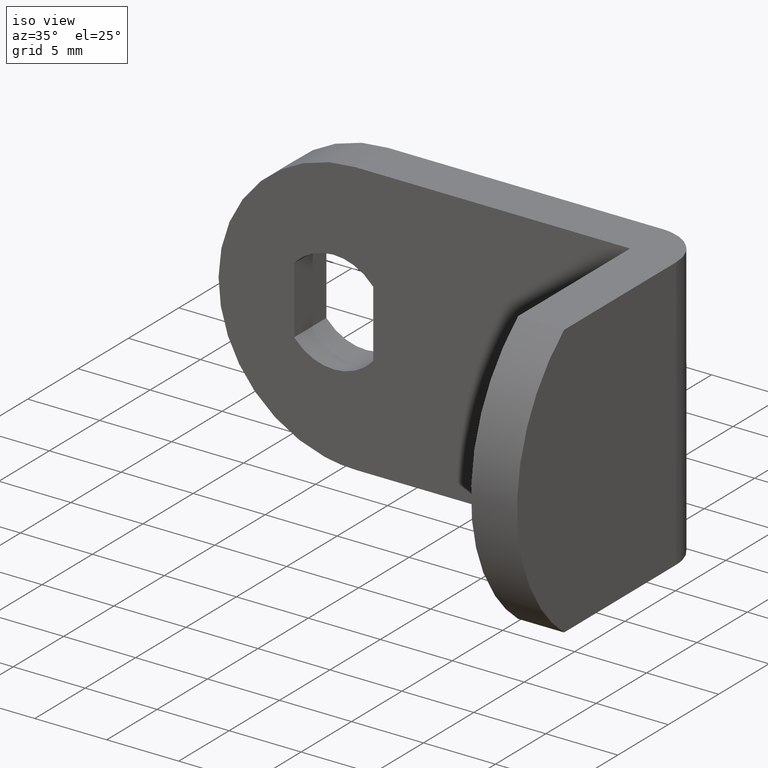
[diagram: clean part render]
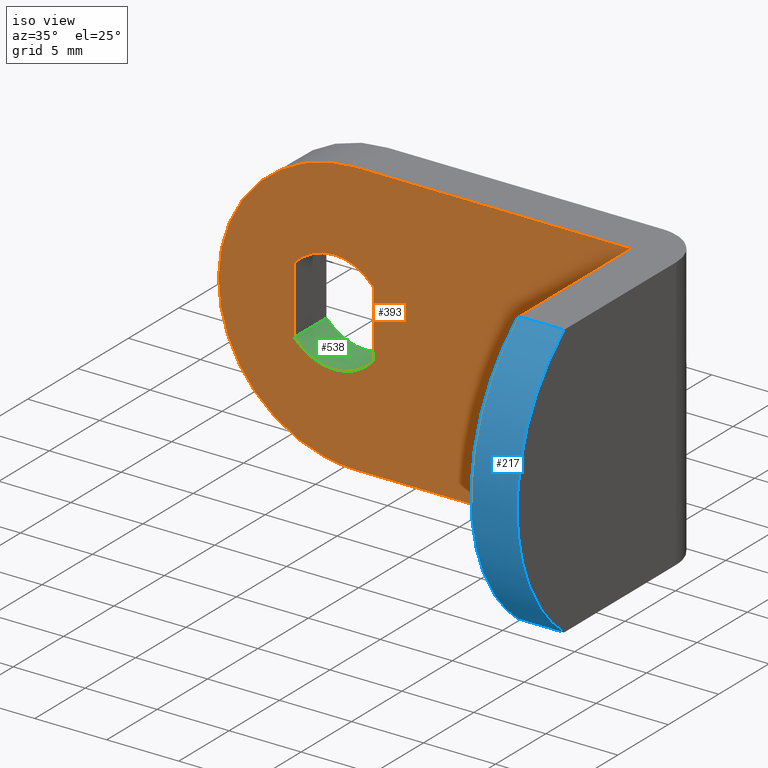
[diagram: same view with three faces highlighted in distinct colors, each labeled with its STEP entity id]
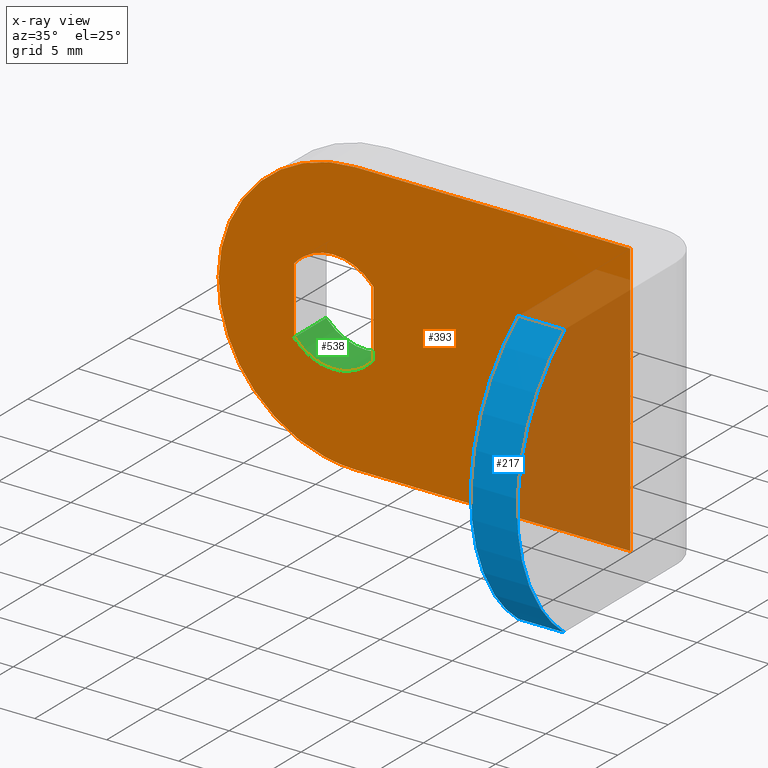
[diagram: x-ray of the same camera — body ghosted, the three highlighted faces saturated]
A machine part, iso view with three faces highlighted in distinct colors.
The next image is the same camera in x-ray (body ghosted, the three faces saturated) — at least one of them is partly hidden behind the body in this view.
Their STEP definitions:

[orange] entity #393 — the highlighted face is a freeform B-spline surface patch.
#110=CARTESIAN_POINT('',(20.600000000000001,-3.199999999999760,-9.500000000000000));
#111=VERTEX_POINT('',#110);
#112=CARTESIAN_POINT('',(20.600000000000001,-3.199999999999760,9.500000000000000));
#113=VERTEX_POINT('',#112);
#114=CARTESIAN_POINT('',(20.600000000000001,-3.199999999999760,-9.500000000000000));
#115=CARTESIAN_POINT('',(20.600000000000001,-3.199999999999760,9.500000000000000));
#116=QUASI_UNIFORM_CURVE('',1,(#114,#115),.UNSPECIFIED.,.F.,.U.);
#117=EDGE_CURVE('',#111,#113,#116,.T.);
#306=CARTESIAN_POINT('',(-9.428569944567636,-3.199999999999800,10.449049963174311));
#307=CARTESIAN_POINT('',(22.028570711679428,-3.199999999999800,10.449049963174311));
#308=CARTESIAN_POINT('',(-9.428569944567636,-3.199999999999800,-10.449050472794021));
#309=CARTESIAN_POINT('',(22.028570711679428,-3.199999999999800,-10.449050472794021));
#310=B_SPLINE_SURFACE_WITH_KNOTS('',1,1,((#306,#308),(#307,#309)),.UNSPECIFIED.,.F.,.F.,.U.,(2,2),(2,2),(0.0,31.457140656247059),(0.0,20.898100435968342),.UNSPECIFIED.);
#311=CARTESIAN_POINT('',(1.500000000000000,-3.199999999999760,9.500000000000000));
#312=VERTEX_POINT('',#311);
#313=CARTESIAN_POINT('',(20.600000000000001,-3.199999999999760,9.500000000000000));
#314=CARTESIAN_POINT('',(1.500000000000000,-3.199999999999760,9.500000000000000));
#315=QUASI_UNIFORM_CURVE('',1,(#313,#314),.UNSPECIFIED.,.F.,.U.);
#316=EDGE_CURVE('',#113,#312,#315,.T.);
#317=ORIENTED_EDGE('',*,*,#316,.T.);
#318=CARTESIAN_POINT('',(1.500000000000000,-3.199999999999760,-9.500000000000000));
#319=VERTEX_POINT('',#318);
#320=CARTESIAN_POINT('',(1.500000000000000,-3.199999999999760,9.500000000000000));
#321=CARTESIAN_POINT('',(-8.0,-3.199999999999759,9.500000000000000));
#322=CARTESIAN_POINT('',(-8.0,-3.199999999999760,0.0));
#323=CARTESIAN_POINT('',(-8.0,-3.199999999999759,-9.500000000000000));
#324=CARTESIAN_POINT('',(1.500000000000000,-3.199999999999760,-9.500000000000000));
#332=(BOUNDED_CURVE()B_SPLINE_CURVE(2,(#320,#321,#322,#323,#324),.UNSPECIFIED.,.F.,.U.)B_SPLINE_CURVE_WITH_KNOTS((3,2,3),(0.0,0.500000000000000,1.0),.UNSPECIFIED.)CURVE()GEOMETRIC_REPRESENTATION_ITEM()RATIONAL_B_SPLINE_CURVE((1.0,0.707106781186548,1.0,0.707106781186548,1.0))REPRESENTATION_ITEM(''));
#333=EDGE_CURVE('',#312,#319,#332,.T.);
#334=ORIENTED_EDGE('',*,*,#333,.T.);
#335=CARTESIAN_POINT('',(1.500000000000000,-3.199999999999760,-9.500000000000000));
#336=CARTESIAN_POINT('',(20.600000000000001,-3.199999999999760,-9.500000000000000));
#337=QUASI_UNIFORM_CURVE('',1,(#335,#336),.UNSPECIFIED.,.F.,.U.);
#338=EDGE_CURVE('',#319,#111,#337,.T.);
#339=ORIENTED_EDGE('',*,*,#338,.T.);
#340=ORIENTED_EDGE('',*,*,#117,.T.);
#341=EDGE_LOOP('',(#317,#334,#339,#340));
#342=FACE_OUTER_BOUND('',#341,.T.);
#343=CARTESIAN_POINT('',(-2.750000000000000,-3.199999999999760,-2.323252031097790));
#344=VERTEX_POINT('',#343);
#345=CARTESIAN_POINT('',(2.750000000000000,-3.199999999999760,-2.323252031097790));
#346=VERTEX_POINT('',#345);
#347=CARTESIAN_POINT('',(-2.749999999999999,-3.199999999999760,-2.323252031097790));
#348=CARTESIAN_POINT('',(-1.671379159290166,-3.199999999999760,-3.600000000000001));
#349=CARTESIAN_POINT('',(0.0,-3.199999999999760,-3.600000000000000));
#350=CARTESIAN_POINT('',(1.671379159290166,-3.199999999999760,-3.600000000000001));
#351=CARTESIAN_POINT('',(2.749999999999998,-3.199999999999760,-2.323252031097791));
#359=(BOUNDED_CURVE()B_SPLINE_CURVE(2,(#347,#348,#349,#350,#351),.UNSPECIFIED.,.F.,.U.)B_SPLINE_CURVE_WITH_KNOTS((3,2,3),(0.0,0.500000000000000,1.0),.UNSPECIFIED.)CURVE()GEOMETRIC_REPRESENTATION_ITEM()RATIONAL_B_SPLINE_CURVE((1.0,0.907013722723105,1.0,0.907013722723105,1.0))REPRESENTATION_ITEM(''));
#360=EDGE_CURVE('',#344,#346,#359,.T.);
#361=ORIENTED_EDGE('',*,*,#360,.F.);
#362=CARTESIAN_POINT('',(-2.750000000000000,-3.199999999999760,2.323252031097790));
#363=VERTEX_POINT('',#362);
#364=CARTESIAN_POINT('',(-2.750000000000000,-3.199999999999760,-2.323252031097790));
#365=CARTESIAN_POINT('',(-2.750000000000000,-3.199999999999760,2.323252031097790));
#366=QUASI_UNIFORM_CURVE('',1,(#364,#365),.UNSPECIFIED.,.F.,.U.);
#367=EDGE_CURVE('',#344,#363,#366,.T.);
#368=ORIENTED_EDGE('',*,*,#367,.T.);
#369=CARTESIAN_POINT('',(2.750000000000000,-3.199999999999760,2.323252031097790));
#370=VERTEX_POINT('',#369);
#371=CARTESIAN_POINT('',(2.749999999999999,-3.199999999999760,2.323252031097790));
#372=CARTESIAN_POINT('',(1.671379159290166,-3.199999999999760,3.600000000000001));
#373=CARTESIAN_POINT('',(0.0,-3.199999999999760,3.600000000000000));
#374=CARTESIAN_POINT('',(-1.671379159290165,-3.199999999999760,3.600000000000001));
#375=CARTESIAN_POINT('',(-2.749999999999998,-3.199999999999760,2.323252031097791));
#383=(BOUNDED_CURVE()B_SPLINE_CURVE(2,(#371,#372,#373,#374,#375),.UNSPECIFIED.,.F.,.U.)B_SPLINE_CURVE_WITH_KNOTS((3,2,3),(0.0,0.500000000000000,1.0),.UNSPECIFIED.)CURVE()GEOMETRIC_REPRESENTATION_ITEM()RATIONAL_B_SPLINE_CURVE((1.0,0.907013722723105,1.0,0.907013722723105,1.0))REPRESENTATION_ITEM(''));
#384=EDGE_CURVE('',#370,#363,#383,.T.);
#385=ORIENTED_EDGE('',*,*,#384,.F.);
#386=CARTESIAN_POINT('',(2.750000000000000,-3.199999999999760,2.323252031097790));
#387=CARTESIAN_POINT('',(2.750000000000000,-3.199999999999760,-2.323252031097790));
#388=QUASI_UNIFORM_CURVE('',1,(#386,#387),.UNSPECIFIED.,.F.,.U.);
#389=EDGE_CURVE('',#370,#346,#388,.T.);
#390=ORIENTED_EDGE('',*,*,#389,.T.);
#391=EDGE_LOOP('',(#361,#368,#385,#390));
#392=FACE_BOUND('',#391,.T.);
#393=ADVANCED_FACE('',(#342,#392),#310,.F.);

[blue] entity #217 — the highlighted face is a freeform B-spline surface patch.
#119=CARTESIAN_POINT('',(20.600000000000001,-14.331439149307560,-9.500000000000000));
#120=VERTEX_POINT('',#119);
#126=CARTESIAN_POINT('',(20.600000000000001,-14.331439149307601,9.500000000000000));
#127=VERTEX_POINT('',#126);
#128=CARTESIAN_POINT('',(20.600000000000001,-14.331439149307601,9.499999999999996));
#129=CARTESIAN_POINT('',(20.600000000000001,-19.0,5.897129495611462));
#130=CARTESIAN_POINT('',(20.600000000000001,-19.0,-4.286122E-016));
#131=CARTESIAN_POINT('',(20.600000000000001,-19.0,-5.897129495611475));
#132=CARTESIAN_POINT('',(20.600000000000001,-14.331439149307579,-9.500000000000011));
#140=(BOUNDED_CURVE()B_SPLINE_CURVE(2,(#128,#129,#130,#131,#132),.UNSPECIFIED.,.F.,.U.)B_SPLINE_CURVE_WITH_KNOTS((3,2,3),(0.0,0.500000000000000,1.0),.UNSPECIFIED.)CURVE()GEOMETRIC_REPRESENTATION_ITEM()RATIONAL_B_SPLINE_CURVE((1.0,0.897483499135862,1.0,0.897483499135862,1.0))REPRESENTATION_ITEM(''));
#141=EDGE_CURVE('',#127,#120,#140,.T.);
#156=CARTESIAN_POINT('',(23.800000000000001,-14.331439149307560,-9.500000000000000));
#157=VERTEX_POINT('',#156);
#164=CARTESIAN_POINT('',(23.800000000000001,-14.331439149307601,9.500000000000000));
#165=VERTEX_POINT('',#164);
#171=CARTESIAN_POINT('',(23.800000000000001,-14.331439149307601,9.499999999999996));
#172=CARTESIAN_POINT('',(23.800000000000004,-19.0,5.897129495611462));
#173=CARTESIAN_POINT('',(23.800000000000001,-19.0,-4.286122E-016));
#174=CARTESIAN_POINT('',(23.800000000000004,-19.0,-5.897129495611475));
#175=CARTESIAN_POINT('',(23.800000000000001,-14.331439149307579,-9.500000000000011));
#183=(BOUNDED_CURVE()B_SPLINE_CURVE(2,(#171,#172,#173,#174,#175),.UNSPECIFIED.,.F.,.U.)B_SPLINE_CURVE_WITH_KNOTS((3,2,3),(0.0,0.500000000000000,1.0),.UNSPECIFIED.)CURVE()GEOMETRIC_REPRESENTATION_ITEM()RATIONAL_B_SPLINE_CURVE((1.0,0.897483499135862,1.0,0.897483499135862,1.0))REPRESENTATION_ITEM(''));
#184=EDGE_CURVE('',#165,#157,#183,.T.);
#189=CARTESIAN_POINT('',(23.880000000000010,-13.910077063780680,9.810750989226667));
#190=CARTESIAN_POINT('',(20.518000000000001,-13.910077063780680,9.810750989226667));
#191=CARTESIAN_POINT('',(23.880000000000010,-27.921281533687949,-0.057861795846104));
#192=CARTESIAN_POINT('',(20.517999999999994,-27.921281533687949,-0.057861795846104));
#193=CARTESIAN_POINT('',(23.880000000000010,-13.855704761198680,-9.848822885364408));
#194=CARTESIAN_POINT('',(20.518000000000001,-13.855704761198680,-9.848822885364408));
#202=(BOUNDED_SURFACE()B_SPLINE_SURFACE(1,2,((#189,#191,#193),(#190,#192,#194)),.UNSPECIFIED.,.F.,.F.,.U.)B_SPLINE_SURFACE_WITH_KNOTS((2,2),(3,3),(0.0,3.362000000000010),(0.0,24.987218426483800),.UNSPECIFIED.)GEOMETRIC_REPRESENTATION_ITEM()RATIONAL_B_SPLINE_SURFACE(((1.0,0.573576436351047,1.0),(1.0,0.573576436351047,1.0)))REPRESENTATION_ITEM('')SURFACE());
#203=ORIENTED_EDGE('',*,*,#141,.T.);
#204=CARTESIAN_POINT('',(23.800000000000001,-14.331439149307560,-9.500000000000000));
#205=CARTESIAN_POINT('',(20.600000000000001,-14.331439149307560,-9.500000000000000));
#206=QUASI_UNIFORM_CURVE('',1,(#204,#205),.UNSPECIFIED.,.F.,.U.);
#207=EDGE_CURVE('',#157,#120,#206,.T.);
#208=ORIENTED_EDGE('',*,*,#207,.F.);
#209=ORIENTED_EDGE('',*,*,#184,.F.);
#210=CARTESIAN_POINT('',(23.800000000000001,-14.331439149307601,9.500000000000000));
#211=CARTESIAN_POINT('',(20.600000000000001,-14.331439149307601,9.500000000000000));
#212=QUASI_UNIFORM_CURVE('',1,(#210,#211),.UNSPECIFIED.,.F.,.U.);
#213=EDGE_CURVE('',#165,#127,#212,.T.);
#214=ORIENTED_EDGE('',*,*,#213,.T.);
#215=EDGE_LOOP('',(#203,#208,#209,#214));
#216=FACE_OUTER_BOUND('',#215,.T.);
#217=ADVANCED_FACE('',(#216),#202,.T.);

[green] entity #538 — the highlighted face is a freeform B-spline surface patch.
#255=CARTESIAN_POINT('',(-2.750000000000000,0.0,-2.323252031097790));
#256=VERTEX_POINT('',#255);
#257=CARTESIAN_POINT('',(2.750000000000000,0.0,-2.323252031097790));
#258=VERTEX_POINT('',#257);
#259=CARTESIAN_POINT('',(-2.749999999999999,0.0,-2.323252031097790));
#260=CARTESIAN_POINT('',(-1.671379159290166,0.0,-3.600000000000001));
#261=CARTESIAN_POINT('',(0.0,0.0,-3.600000000000000));
#262=CARTESIAN_POINT('',(1.671379159290166,0.0,-3.600000000000001));
#263=CARTESIAN_POINT('',(2.749999999999998,0.0,-2.323252031097791));
#271=(BOUNDED_CURVE()B_SPLINE_CURVE(2,(#259,#260,#261,#262,#263),.UNSPECIFIED.,.F.,.U.)B_SPLINE_CURVE_WITH_KNOTS((3,2,3),(0.0,0.500000000000000,1.0),.UNSPECIFIED.)CURVE()GEOMETRIC_REPRESENTATION_ITEM()RATIONAL_B_SPLINE_CURVE((1.0,0.907013722723105,1.0,0.907013722723105,1.0))REPRESENTATION_ITEM(''));
#272=EDGE_CURVE('',#256,#258,#271,.T.);
#343=CARTESIAN_POINT('',(-2.750000000000000,-3.199999999999760,-2.323252031097790));
#344=VERTEX_POINT('',#343);
#345=CARTESIAN_POINT('',(2.750000000000000,-3.199999999999760,-2.323252031097790));
#346=VERTEX_POINT('',#345);
#347=CARTESIAN_POINT('',(-2.749999999999999,-3.199999999999760,-2.323252031097790));
#348=CARTESIAN_POINT('',(-1.671379159290166,-3.199999999999760,-3.600000000000001));
#349=CARTESIAN_POINT('',(0.0,-3.199999999999760,-3.600000000000000));
#350=CARTESIAN_POINT('',(1.671379159290166,-3.199999999999760,-3.600000000000001));
#351=CARTESIAN_POINT('',(2.749999999999998,-3.199999999999760,-2.323252031097791));
#359=(BOUNDED_CURVE()B_SPLINE_CURVE(2,(#347,#348,#349,#350,#351),.UNSPECIFIED.,.F.,.U.)B_SPLINE_CURVE_WITH_KNOTS((3,2,3),(0.0,0.500000000000000,1.0),.UNSPECIFIED.)CURVE()GEOMETRIC_REPRESENTATION_ITEM()RATIONAL_B_SPLINE_CURVE((1.0,0.907013722723105,1.0,0.907013722723105,1.0))REPRESENTATION_ITEM(''));
#360=EDGE_CURVE('',#344,#346,#359,.T.);
#400=CARTESIAN_POINT('',(2.750000000000000,-3.199999999999760,-2.323252031097790));
#401=CARTESIAN_POINT('',(2.750000000000000,0.0,-2.323252031097790));
#402=QUASI_UNIFORM_CURVE('',1,(#400,#401),.UNSPECIFIED.,.F.,.U.);
#403=EDGE_CURVE('',#346,#258,#402,.T.);
#510=CARTESIAN_POINT('',(-2.750000000000000,-3.199999999999760,-2.323252031097790));
#511=CARTESIAN_POINT('',(-2.750000000000000,0.0,-2.323252031097790));
#512=QUASI_UNIFORM_CURVE('',1,(#510,#511),.UNSPECIFIED.,.F.,.U.);
#513=EDGE_CURVE('',#344,#256,#512,.T.);
#518=CARTESIAN_POINT('',(-2.809873292006992,-3.279999999999755,-2.250469302804591));
#519=CARTESIAN_POINT('',(-2.809873292006992,0.081999999999994,-2.250469302804591));
#520=CARTESIAN_POINT('',(0.070596060625135,-3.279999999999756,-5.846943110431760));
#521=CARTESIAN_POINT('',(0.070596060625135,0.081999999999994,-5.846943110431760));
#522=CARTESIAN_POINT('',(2.863390619823826,-3.279999999999755,-2.181970246888101));
#523=CARTESIAN_POINT('',(2.863390619823826,0.081999999999994,-2.181970246888101));
#531=(BOUNDED_SURFACE()B_SPLINE_SURFACE(1,2,((#518,#520,#522),(#519,#521,#523)),.UNSPECIFIED.,.F.,.F.,.U.)B_SPLINE_SURFACE_WITH_KNOTS((2,2),(3,3),(0.0,3.361999999999750),(0.0,7.023349275348402),.UNSPECIFIED.)GEOMETRIC_REPRESENTATION_ITEM()RATIONAL_B_SPLINE_SURFACE(((1.0,0.615661475325658,1.0),(1.0,0.615661475325658,1.0)))REPRESENTATION_ITEM('')SURFACE());
#532=ORIENTED_EDGE('',*,*,#272,.F.);
#533=ORIENTED_EDGE('',*,*,#513,.F.);
#534=ORIENTED_EDGE('',*,*,#360,.T.);
#535=ORIENTED_EDGE('',*,*,#403,.T.);
#536=EDGE_LOOP('',(#532,#533,#534,#535));
#537=FACE_OUTER_BOUND('',#536,.T.);
#538=ADVANCED_FACE('',(#537),#531,.F.);